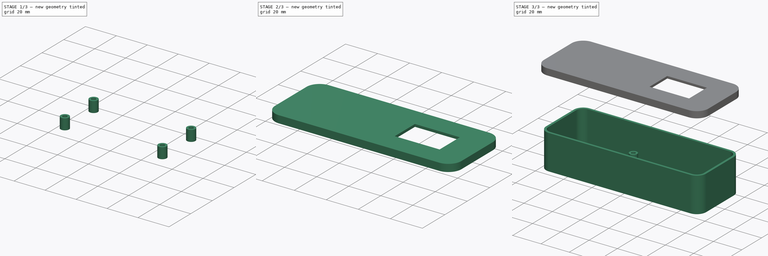
[diagram: build sequence overview — one tinted view per stage of 3, left to right]
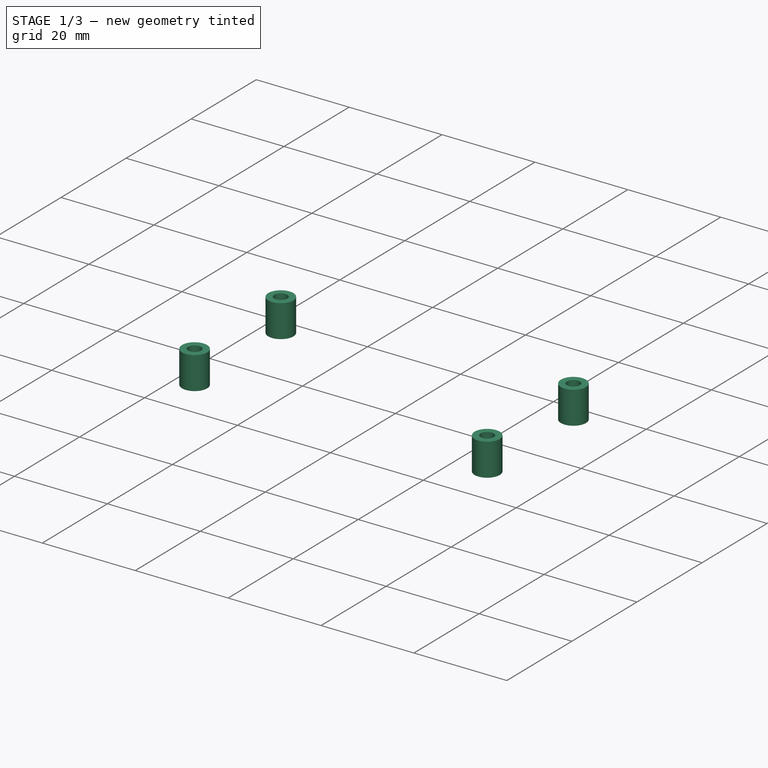
[diagram: stage 1 of 3 — iso view after this stage's code; geometry added in this stage tinted green]
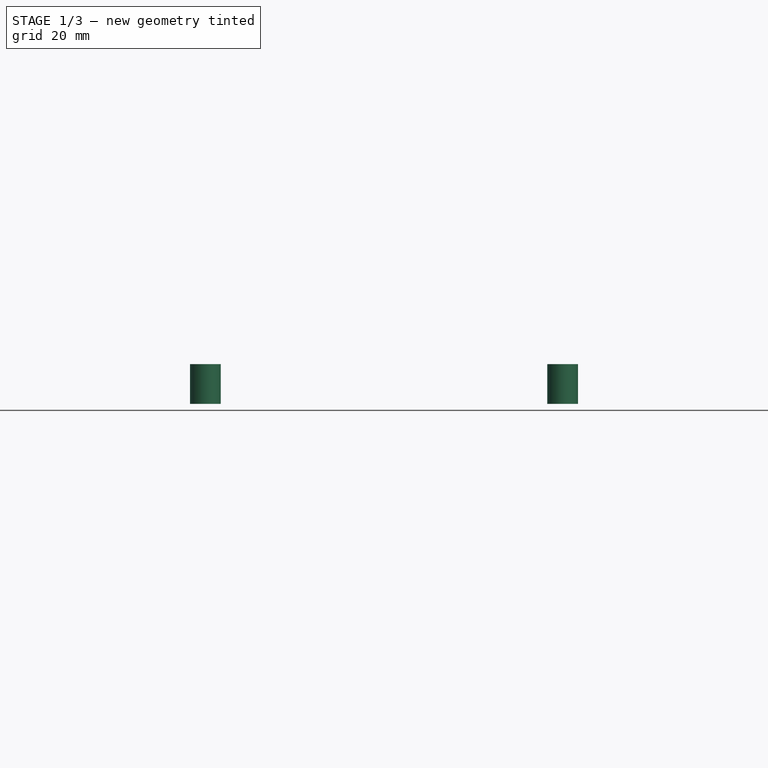
[diagram: stage 1 of 3 — front view after this stage's code; geometry added in this stage tinted green]
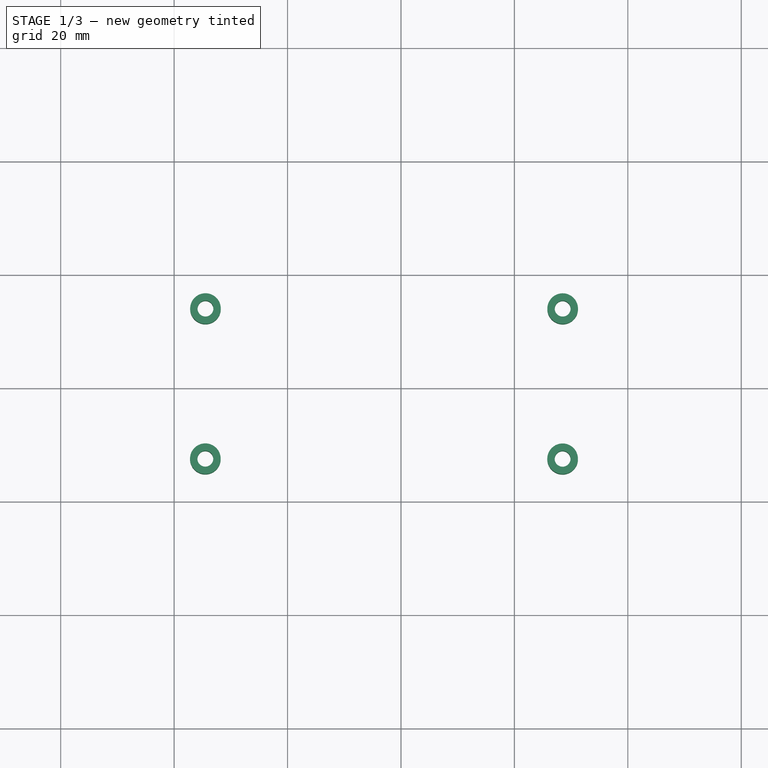
[diagram: stage 1 of 3 — top view after this stage's code; geometry added in this stage tinted green]
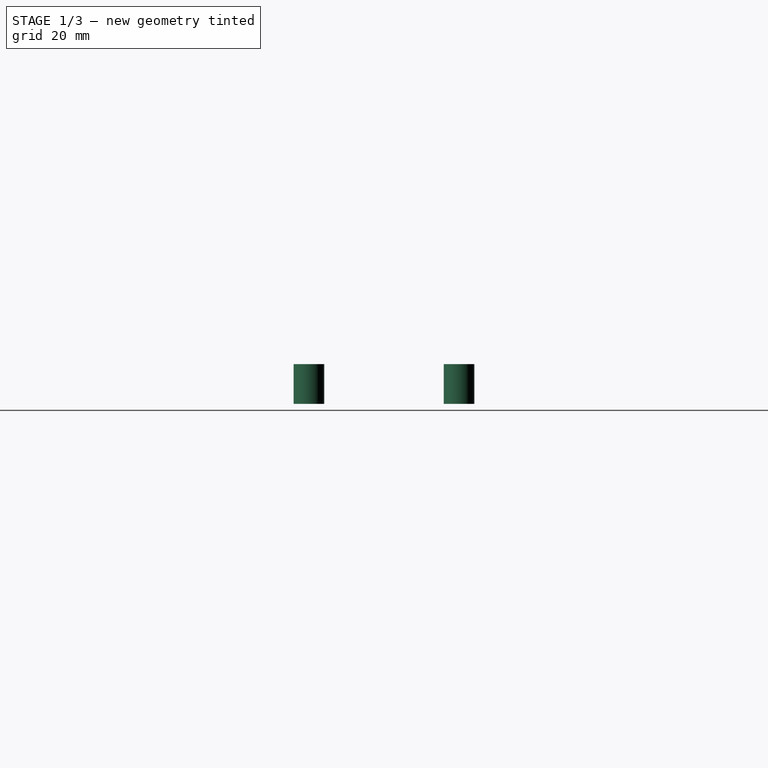
[diagram: stage 1 of 3 — right view after this stage's code; geometry added in this stage tinted green]
FCSTD DOCUMENT  (FreeCAD 0.21R33771 (Git))
Label: MarstekMonitorEnclosureV0.1
License: All rights reserved
LicenseURL: https://en.wikipedia.org/wiki/All_rights_reserved
objects: Sketcher::SketchObject×5, Part::Extrusion×5, Part::Feature×3, Part::MultiFuse×2, App::Part×1, App::DocumentObjectGroup×1
note: 15 computed .brp shape members not serialized (recipe doc carries the construction recipe); baked Part::Feature solids carry a one-line shape summary decoded from their .brp

FEATURE [Part::Feature] Part__Feature  label="C_1210_3225Metric"
  Placement = pos=(113,-92.0625,1.595) rot=(0,0,-1;1.5708rad)
  shape: bbox 2.5 x 3.2 x 2.5 mm, 28 faces (baked)
FEATURE [Part::Feature] Part__Feature001  label="C_1210_3225Metric001"
  Placement = pos=(145.562,-75,1.595) rot=(0,0,1;0rad)
  shape: bbox 3.2 x 2.5 x 2.5 mm, 28 faces (baked)
FEATURE [Part::Feature] Part__Feature002  label="MarstekMonitor_PCB"
  shape: bbox 70 x 33.5 x 1.51 mm, 54 faces (baked)
FEATURE [App::Part] MarstekMonitor_1  label="MarstekMonitor 1"
  Group = -> [Part__Feature,Part__Feature001,Part__Feature002]
  Origin = -> Origin
  Placement = pos=(35,0,0) rot=(0,0,1;0rad)
FEATURE [Sketcher::SketchObject] Sketch  label="walls"
  FullyConstrained = true
  sketch-geometry (20):
    g0: LineSegment StartX=89.4982 StartY=-60.2501 StartZ=0 EndX=189.498 EndY=-60.2501 EndZ=0
    g1: LineSegment StartX=194.498 StartY=-65.2501 StartZ=0 EndX=194.498 EndY=-93.2501 EndZ=0
    g2: LineSegment StartX=189.498 StartY=-98.2501 StartZ=0 EndX=89.4982 EndY=-98.2501 EndZ=0
    g3: LineSegment StartX=84.4982 StartY=-93.2501 StartZ=0 EndX=84.4982 EndY=-65.2501 EndZ=0
    g4: ArcOfCircle CenterX=89.4982 CenterY=-65.2501 CenterZ=0 NormalX=0 NormalY=0 NormalZ=1 AngleXU=0 Radius=5 StartAngle=1.5708 EndAngle=3.14159
    g5: ArcOfCircle CenterX=89.4982 CenterY=-93.2501 CenterZ=0 NormalX=0 NormalY=0 NormalZ=1 AngleXU=0 Radius=5 StartAngle=3.14159 EndAngle=4.71239
    g6: ArcOfCircle CenterX=189.498 CenterY=-93.2501 CenterZ=0 NormalX=0 NormalY=0 NormalZ=1 AngleXU=0 Radius=5 StartAngle=4.71239 EndAngle=6.28319
    g7: ArcOfCircle CenterX=189.498 CenterY=-65.2501 CenterZ=0 NormalX=0 NormalY=0 NormalZ=1 AngleXU=0 Radius=5 StartAngle=-9e-16 EndAngle=1.5708
    g8: LineSegment StartX=86.9982 StartY=-96.0001 StartZ=0 EndX=156.998 EndY=-96.0001 EndZ=0
    g9: LineSegment StartX=156.998 StartY=-96.0001 StartZ=0 EndX=156.998 EndY=-62.5001 EndZ=0
    g10: LineSegment StartX=156.998 StartY=-62.5001 StartZ=0 EndX=86.9982 EndY=-62.5001 EndZ=0
    g11: LineSegment StartX=86.9982 StartY=-62.5001 StartZ=0 EndX=86.9982 EndY=-96.0001 EndZ=0
    g12: LineSegment StartX=89.4982 StartY=-99.8501 StartZ=0 EndX=189.498 EndY=-99.8501 EndZ=0
    g13: LineSegment StartX=196.098 StartY=-93.2501 StartZ=0 EndX=196.098 EndY=-65.2501 EndZ=0
    g14: LineSegment StartX=189.498 StartY=-58.6501 StartZ=0 EndX=89.4982 EndY=-58.6501 EndZ=0
    g15: LineSegment StartX=82.8982 StartY=-65.2501 StartZ=0 EndX=82.8982 EndY=-93.2501 EndZ=0
    g16: ArcOfCircle CenterX=89.4982 CenterY=-93.2501 CenterZ=0 NormalX=0 NormalY=0 NormalZ=1 AngleXU=0 Radius=6.6 StartAngle=3.14159 EndAngle=4.71239
    g17: ArcOfCircle CenterX=189.498 CenterY=-93.2501 CenterZ=0 NormalX=0 NormalY=0 NormalZ=1 AngleXU=0 Radius=6.6 StartAngle=4.71239 EndAngle=6.28319
    g18: ArcOfCircle CenterX=189.498 CenterY=-65.2501 CenterZ=0 NormalX=0 NormalY=0 NormalZ=1 AngleXU=0 Radius=6.6 StartAngle=3e-16 EndAngle=1.5708
    g19: ArcOfCircle CenterX=89.4982 CenterY=-65.2501 CenterZ=0 NormalX=0 NormalY=0 NormalZ=1 AngleXU=0 Radius=6.6 StartAngle=1.5708 EndAngle=3.14159
  constraints (52):
    c: Horizontal(g0)
    c: Horizontal(g2)
    c: Vertical(g1)
    c: Vertical(g3)
    c: Tangent(g0,g4) = 1.5708
    c: Tangent(g3,g4) = 1.5708
    c: Tangent(g2,g5) = 1.5708
    c: Tangent(g3,g5) = 1.5708
    c: Tangent(g1,g6) = 1.5708
    c: Tangent(g2,g6) = 1.5708
    c: Tangent(g0,g7) = 1.5708
    c: Tangent(g1,g7) = 1.5708
    c: Radius(g4) = 5
    c: Radius(g5) = 5
    c: Radius(g6) = 5
    c: Radius(g7) = 5
    c: Distance(g1) = 28
    c: Coincident(g8,g9)
    c: Coincident(g9,g10)
    c: Coincident(g10,g11)
    c: Coincident(g11,g8)
    c: Horizontal(g8)
    c: Horizontal(g10)
    c: Vertical(g9)
    c: Vertical(g11)
    c: DistanceX(g8) = 86.9982
    c: DistanceY(g8) = -96.0001
    c: Distance(g8) = 70
    c: Distance(g9) = 33.5
    c: Distance(g5,g8) = 2.75
    c: Distance(g5,g11) = 2.5
    c: Horizontal(g12)
    c: Horizontal(g14)
    c: Vertical(g13)
    c: Vertical(g15)
    c: Distance(g3,g15) = 1.6
    c: Distance(g2,g12) = 1.6
    c: Tangent(g12,g16) = -1.5708
    c: Tangent(g15,g16) = -1.5708
    c: Radius(g16) = 6.6
    c: Tangent(g12,g17) = -1.5708
    c: Tangent(g13,g17) = -1.5708
    c: Radius(g17) = 6.6
    c: Distance(g1,g13) = 1.6
    c: Distance(g0,g14) = 1.6
    c: Tangent(g13,g18) = -1.5708
    c: Tangent(g14,g18) = -1.5708
    c: Radius(g18) = 6.6
    c: Tangent(g14,g19) = -1.5708
    c: Tangent(g15,g19) = -1.5708
    c: Radius(g19) = 6.6
    c: Distance(g12) = 100
FEATURE [Sketcher::SketchObject] Sketch001  label="bottom"
  FullyConstrained = true
  sketch-geometry (12):
    g0: LineSegment StartX=86.9982 StartY=-96.0001 StartZ=0 EndX=156.998 EndY=-96.0001 EndZ=0
    g1: LineSegment StartX=156.998 StartY=-96.0001 StartZ=0 EndX=156.998 EndY=-62.5001 EndZ=0
    g2: LineSegment StartX=156.998 StartY=-62.5001 StartZ=0 EndX=86.9982 EndY=-62.5001 EndZ=0
    g3: LineSegment StartX=86.9982 StartY=-62.5001 StartZ=0 EndX=86.9982 EndY=-96.0001 EndZ=0
    g4: LineSegment StartX=89.4982 StartY=-99.8501 StartZ=0 EndX=189.498 EndY=-99.8501 EndZ=0
    g5: LineSegment StartX=196.098 StartY=-93.2501 StartZ=0 EndX=196.098 EndY=-65.2501 EndZ=0
    g6: LineSegment StartX=189.498 StartY=-58.6501 StartZ=0 EndX=89.4982 EndY=-58.6501 EndZ=0
    g7: LineSegment StartX=82.8982 StartY=-65.2501 StartZ=0 EndX=82.8982 EndY=-93.2501 EndZ=0
    g8: ArcOfCircle CenterX=89.4982 CenterY=-93.2501 CenterZ=0 NormalX=0 NormalY=0 NormalZ=1 AngleXU=0 Radius=6.6 StartAngle=3.14159 EndAngle=4.71239
    g9: ArcOfCircle CenterX=189.498 CenterY=-93.2501 CenterZ=0 NormalX=0 NormalY=0 NormalZ=1 AngleXU=0 Radius=6.6 StartAngle=4.71239 EndAngle=6.28319
    g10: ArcOfCircle CenterX=189.498 CenterY=-65.2501 CenterZ=0 NormalX=0 NormalY=0 NormalZ=1 AngleXU=0 Radius=6.6 StartAngle=8e-16 EndAngle=1.5708
    g11: ArcOfCircle CenterX=89.4982 CenterY=-65.2501 CenterZ=0 NormalX=0 NormalY=0 NormalZ=1 AngleXU=0 Radius=6.6 StartAngle=1.5708 EndAngle=3.14159
  constraints (33):
    c: Coincident(g0,g1)
    c: Coincident(g1,g2)
    c: Coincident(g2,g3)
    c: Coincident(g3,g0)
    c: Horizontal(g0)
    c: Horizontal(g2)
    c: Vertical(g1)
    c: Vertical(g3)
    c: DistanceX(g0) = 86.9982
    c: DistanceY(g0) = -96.0001
    c: Distance(g0) = 70
    c: Distance(g1) = 33.5
    c: Horizontal(g4)
    c: Horizontal(g6)
    c: Vertical(g5)
    c: Vertical(g7)
    c: Tangent(g4,g8) = -1.5708
    c: Tangent(g4,g9) = -1.5708
    c: Tangent(g5,g9) = -1.5708
    c: Radius(g9) = 6.6
    c: Tangent(g5,g10) = -1.5708
    c: Tangent(g6,g10) = -1.5708
    c: Tangent(g6,g11) = -1.5708
    c: Tangent(g7,g11) = -1.5708
    c: Radius(g11) = 6.6
    c: Radius(g10) = 6.6
    c: Distance(g7) = 28
    c: Distance(g8,g0) = 2.75
    c: Distance(g8,g3) = 2.5
    c: Distance(g11,g2) = 2.75
    c: Distance(g11,g3) = 2.5
    c: Distance(g4) = 100
    c: Coincident(g7,g8)
FEATURE [Part::Extrusion] Extrude  label="Bottom"
  Base = -> Sketch001
  Dir = (0,0,1)
  DirMode = 2
  FaceMakerClass = Part::FaceMakerBullseye
  LengthFwd = 1.6
  LengthRev = 0
  Placement = pos=(0,0,-12) rot=(0,0,1;0rad)
  Solid = true
  Symmetric = false
FEATURE [Sketcher::SketchObject] Sketch002  label="pootjes"
  FullyConstrained = false
  MapMode = 5
  Placement = pos=(0,0,-10.4) rot=(0,0,1;0rad)
  Support = -> [Extrude]
  sketch-geometry (8):
    g0: Circle CenterX=90.5246 CenterY=-65.9938 CenterZ=0 NormalX=0 NormalY=0 NormalZ=1 AngleXU=0 Radius=2.7
    g1: Circle CenterX=90.5246 CenterY=-65.9938 CenterZ=0 NormalX=0 NormalY=0 NormalZ=1 AngleXU=0 Radius=1.4
    g2: Circle CenterX=90.5024 CenterY=-92.4718 CenterZ=0 NormalX=0 NormalY=0 NormalZ=1 AngleXU=0 Radius=2.7
    g3: Circle CenterX=90.5024 CenterY=-92.4718 CenterZ=0 NormalX=0 NormalY=0 NormalZ=1 AngleXU=0 Radius=1.4
    g4: Circle CenterX=153.513 CenterY=-66.0052 CenterZ=0 NormalX=0 NormalY=0 NormalZ=1 AngleXU=0 Radius=2.7
    g5: Circle CenterX=153.513 CenterY=-66.0052 CenterZ=0 NormalX=0 NormalY=0 NormalZ=1 AngleXU=0 Radius=1.4
    g6: Circle CenterX=153.502 CenterY=-92.4878 CenterZ=0 NormalX=0 NormalY=0 NormalZ=1 AngleXU=0 Radius=2.7
    g7: Circle CenterX=153.502 CenterY=-92.4878 CenterZ=0 NormalX=0 NormalY=0 NormalZ=1 AngleXU=0 Radius=1.4
  constraints (12):
    c: Coincident(g1,g0)
    c: Radius(g1) = 1.4
    c: Radius(g0) = 2.7
    c: Coincident(g3,g2)
    c: Equal(g1,g3) = 1.3
    c: Equal(g0,g2) = 2.5
    c: Coincident(g5,g4)
    c: Equal(g1,g5) = 1.3
    c: Equal(g0,g4) = 2.5
    c: Coincident(g7,g6)
    c: Equal(g5,g7) = 1.3
    c: Equal(g4,g6) = 2.5
FEATURE [Part::Extrusion] Extrude001  label="pootjesM3"
  Base = -> Sketch002
  Dir = (0,0,1)
  DirMode = 2
  FaceMakerClass = Part::FaceMakerBullseye
  LengthFwd = 7
  LengthRev = 0
  Placement = pos=(35,0,0) rot=(0,0,1;0rad)
  Solid = true
  Symmetric = false
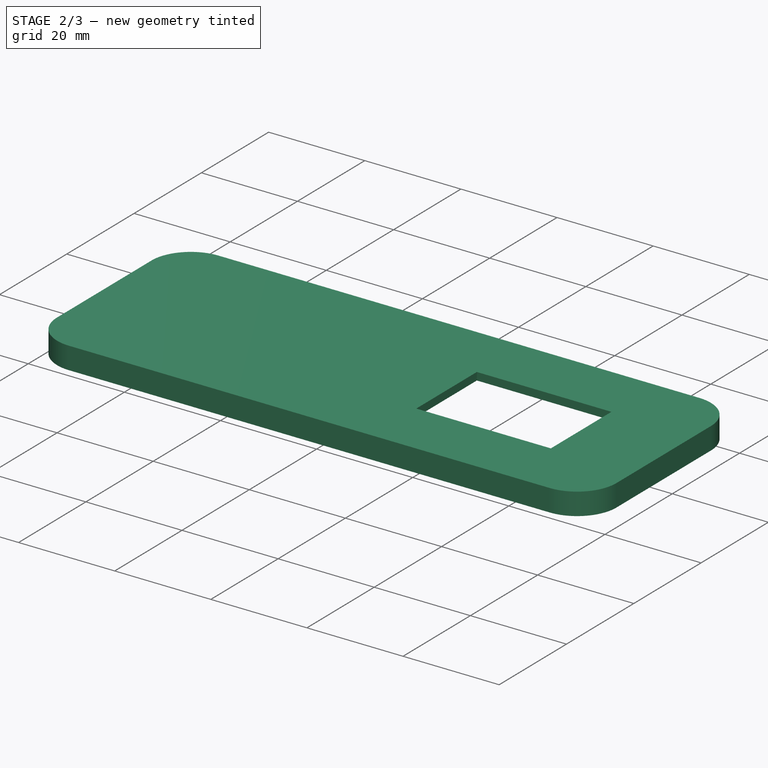
[diagram: stage 2 of 3 — iso view after this stage's code; geometry added in this stage tinted green]
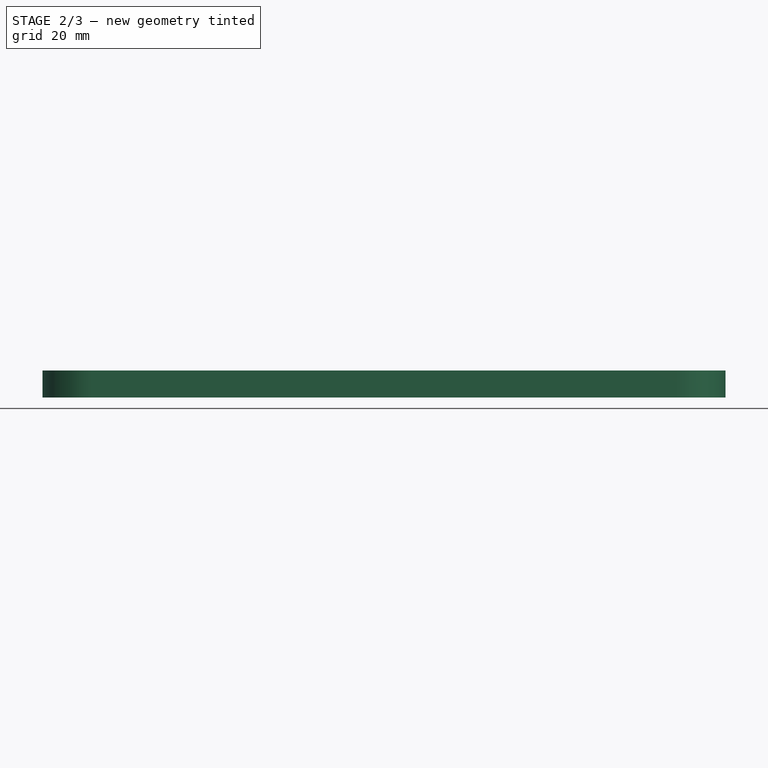
[diagram: stage 2 of 3 — front view after this stage's code; geometry added in this stage tinted green]
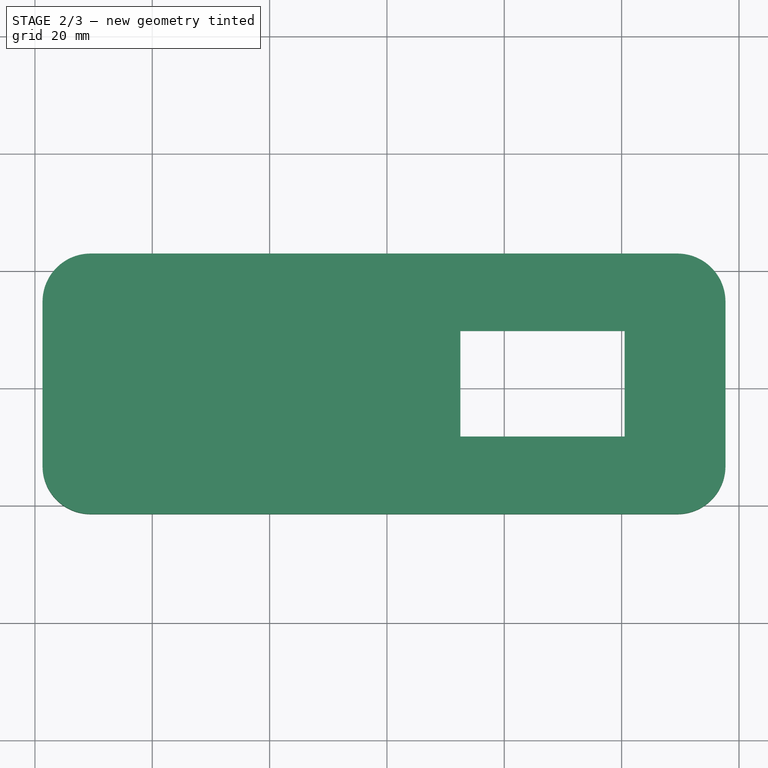
[diagram: stage 2 of 3 — top view after this stage's code; geometry added in this stage tinted green]
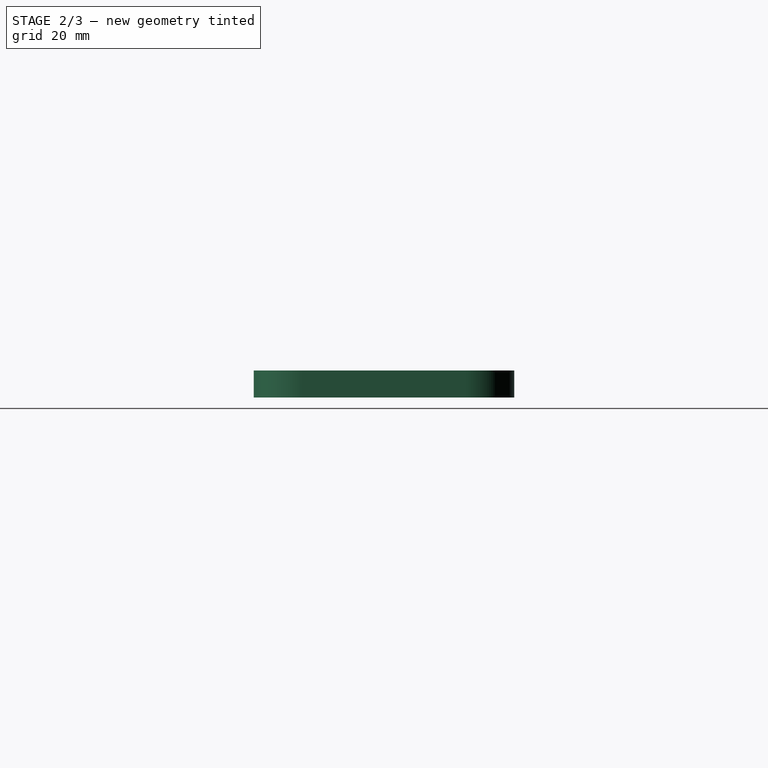
[diagram: stage 2 of 3 — right view after this stage's code; geometry added in this stage tinted green]
FEATURE [Sketcher::SketchObject] Sketch003  label="Deksel001"
  FullyConstrained = true
  expr: Constraints[29] = 6.6 + 1.6
  sketch-geometry (16):
    g0: LineSegment StartX=89.4982 StartY=-99.8501 StartZ=0 EndX=189.498 EndY=-99.8501 EndZ=0
    g1: LineSegment StartX=196.098 StartY=-93.2501 StartZ=0 EndX=196.098 EndY=-65.2501 EndZ=0
    g2: LineSegment StartX=189.498 StartY=-58.6501 StartZ=0 EndX=89.4982 EndY=-58.6501 EndZ=0
    g3: LineSegment StartX=82.8982 StartY=-65.2501 StartZ=0 EndX=82.8982 EndY=-93.2501 EndZ=0
    g4: ArcOfCircle CenterX=89.4982 CenterY=-93.2501 CenterZ=0 NormalX=0 NormalY=0 NormalZ=1 AngleXU=0 Radius=6.6 StartAngle=3.14159 EndAngle=4.71239
    g5: ArcOfCircle CenterX=189.498 CenterY=-93.2501 CenterZ=0 NormalX=0 NormalY=0 NormalZ=1 AngleXU=0 Radius=6.6 StartAngle=4.71239 EndAngle=6.28319
    g6: ArcOfCircle CenterX=189.498 CenterY=-65.2501 CenterZ=0 NormalX=0 NormalY=0 NormalZ=1 AngleXU=0 Radius=6.6 StartAngle=1e-16 EndAngle=1.5708
    g7: ArcOfCircle CenterX=89.4982 CenterY=-65.2501 CenterZ=0 NormalX=0 NormalY=0 NormalZ=1 AngleXU=0 Radius=6.6 StartAngle=1.5708 EndAngle=3.14159
    g8: LineSegment StartX=89.4982 StartY=-57.0501 StartZ=0 EndX=189.498 EndY=-57.0501 EndZ=0
    g9: LineSegment StartX=197.698 StartY=-65.2501 StartZ=0 EndX=197.698 EndY=-93.2501 EndZ=0
    g10: LineSegment StartX=189.498 StartY=-101.45 StartZ=0 EndX=89.4982 EndY=-101.45 EndZ=0
    g11: LineSegment StartX=81.2982 StartY=-93.2501 StartZ=0 EndX=81.2982 EndY=-65.2501 EndZ=0
    g12: ArcOfCircle CenterX=89.4982 CenterY=-65.2501 CenterZ=0 NormalX=0 NormalY=0 NormalZ=1 AngleXU=0 Radius=8.2 StartAngle=1.5708 EndAngle=3.14159
    g13: ArcOfCircle CenterX=89.4982 CenterY=-93.2501 CenterZ=0 NormalX=0 NormalY=0 NormalZ=1 AngleXU=0 Radius=8.2 StartAngle=3.14159 EndAngle=4.71239
    g14: ArcOfCircle CenterX=189.498 CenterY=-65.2501 CenterZ=0 NormalX=0 NormalY=0 NormalZ=1 AngleXU=0 Radius=8.2 StartAngle=7e-16 EndAngle=1.5708
    g15: ArcOfCircle CenterX=189.498 CenterY=-93.2501 CenterZ=0 NormalX=0 NormalY=0 NormalZ=1 AngleXU=0 Radius=8.2 StartAngle=4.71239 EndAngle=6.28319
  constraints (40):
    c: Horizontal(g0)
    c: Horizontal(g2)
    c: Vertical(g1)
    c: Vertical(g3)
    c: Tangent(g0,g4) = -1.5708
    c: Tangent(g3,g4) = -1.5708
    c: Radius(g4) = 6.6
    c: Tangent(g0,g5) = -1.5708
    c: Tangent(g1,g5) = -1.5708
    c: Radius(g5) = 6.6
    c: Tangent(g1,g6) = -1.5708
    c: Tangent(g2,g6) = -1.5708
    c: Radius(g6) = 6.6
    c: Tangent(g2,g7) = -1.5708
    c: Tangent(g3,g7) = -1.5708
    c: Radius(g7) = 6.6
    c: Distance(g0) = 100
    c: Horizontal(g8)
    c: Horizontal(g10)
    c: Vertical(g9)
    c: Vertical(g11)
    c: Distance(g2,g8) = 1.6
    c: Distance(g3,g11) = 1.6
    c: Tangent(g8,g12) = 1.5708
    c: Tangent(g11,g12) = 1.5708
    c: DistanceX(g3) = 82.8982
    c: DistanceY(g3) = -65.2501
    c: Distance(g1,g9) = 1.6
    c: Distance(g0,g10) = 1.6
    c: Radius(g12) = 8.2
    c: Tangent(g10,g13) = 1.5708
    c: Tangent(g11,g13) = 1.5708
    c: Distance(g3) = 28
    c: Radius(g13) = 8.2
    c: Tangent(g8,g14) = 1.5708
    c: Tangent(g9,g14) = 1.5708
    c: Tangent(g9,g15) = 1.5708
    c: Tangent(g10,g15) = 1.5708
    c: Radius(g15) = 8.2
    c: Radius(g14) = 8.2
FEATURE [Part::Extrusion] Extrude003  label="DekselRand"
  Base = -> Sketch003
  Dir = (0,0,1)
  DirMode = 2
  FaceMakerClass = Part::FaceMakerBullseye
  LengthFwd = 3
  LengthRev = 0
  Placement = pos=(0,0,50) rot=(0,0,1;0rad)
  Solid = true
  Symmetric = false
FEATURE [Sketcher::SketchObject] Sketch004  label="Deksel004"
  ExternalGeometry = -> [Extrude001]
  FullyConstrained = false
  expr: Constraints[6] = 6.6 + 1.6
  sketch-geometry (12):
    g0: LineSegment StartX=89.4982 StartY=-57.0501 StartZ=0 EndX=189.498 EndY=-57.0501 EndZ=0
    g1: LineSegment StartX=197.698 StartY=-65.2501 StartZ=0 EndX=197.698 EndY=-93.2501 EndZ=0
    g2: LineSegment StartX=189.498 StartY=-101.45 StartZ=0 EndX=89.4982 EndY=-101.45 EndZ=0
    g3: LineSegment StartX=81.2982 StartY=-93.2501 StartZ=0 EndX=81.2982 EndY=-65.2501 EndZ=0
    g4: ArcOfCircle CenterX=89.4982 CenterY=-65.2501 CenterZ=0 NormalX=0 NormalY=0 NormalZ=1 AngleXU=0 Radius=8.2 StartAngle=1.5708 EndAngle=3.14159
    g5: ArcOfCircle CenterX=89.4982 CenterY=-93.2501 CenterZ=0 NormalX=0 NormalY=0 NormalZ=1 AngleXU=0 Radius=8.2 StartAngle=3.14159 EndAngle=4.71239
    g6: ArcOfCircle CenterX=189.498 CenterY=-65.2501 CenterZ=0 NormalX=0 NormalY=0 NormalZ=1 AngleXU=0 Radius=8.2 StartAngle=7e-16 EndAngle=1.5708
    g7: ArcOfCircle CenterX=189.498 CenterY=-93.2501 CenterZ=0 NormalX=0 NormalY=0 NormalZ=1 AngleXU=0 Radius=8.2 StartAngle=4.71239 EndAngle=6.28319
    g8: LineSegment StartX=180.513 StartY=-70.2451 StartZ=0 EndX=152.513 EndY=-70.2451 EndZ=0
    g9: LineSegment StartX=152.513 StartY=-70.2451 StartZ=0 EndX=152.513 EndY=-88.2451 EndZ=0
    g10: LineSegment StartX=152.513 StartY=-88.2451 StartZ=0 EndX=180.513 EndY=-88.2451 EndZ=0
    g11: LineSegment StartX=180.513 StartY=-88.2451 StartZ=0 EndX=180.513 EndY=-70.2451 EndZ=0
  constraints (28):
    c: Horizontal(g0)
    c: Horizontal(g2)
    c: Vertical(g1)
    c: Vertical(g3)
    c: Tangent(g0,g4) = 1.5708
    c: Tangent(g3,g4) = 1.5708
    c: Radius(g4) = 8.2
    c: Tangent(g2,g5) = 1.5708
    c: Tangent(g3,g5) = 1.5708
    c: Radius(g5) = 8.2
    c: Tangent(g0,g6) = 1.5708
    c: Tangent(g1,g6) = 1.5708
    c: Tangent(g1,g7) = 1.5708
    c: Tangent(g2,g7) = 1.5708
    c: Radius(g7) = 8.2
    c: Radius(g6) = 8.2
    c: Coincident(g8,g9)
    c: Coincident(g9,g10)
    c: Coincident(g10,g11)
    c: Coincident(g11,g8)
    c: Horizontal(g8)
    c: Horizontal(g10)
    c: Vertical(g9)
    c: Vertical(g11)
    c: Distance(g11) = 18
    c: Distance(g8) = 28
    c: Distance(g-3,g11) = 8
    c: Distance(g-3,g8) = 4.24
FEATURE [Part::Extrusion] Extrude004  label="DekselTop"
  Base = -> Sketch004
  Dir = (0,0,1)
  DirMode = 2
  FaceMakerClass = Part::FaceMakerBullseye
  LengthFwd = 1.6
  LengthRev = 0
  Placement = pos=(0,0,53) rot=(0,0,1;0rad)
  Solid = true
  Symmetric = false
FEATURE [Part::MultiFuse] Fusion001  label="Deksel"
  Shapes = -> [Extrude003,Extrude004]
FEATURE [App::DocumentObjectGroup] Group  label="Deksel003"
  Group = -> [Sketch004,Fusion001]
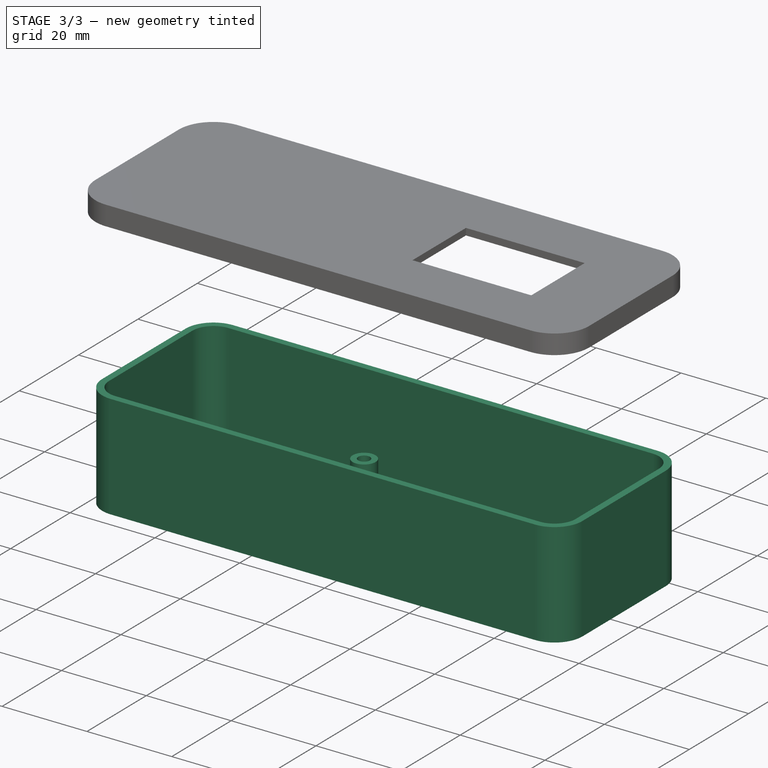
[diagram: stage 3 of 3 — iso view after this stage's code; geometry added in this stage tinted green]
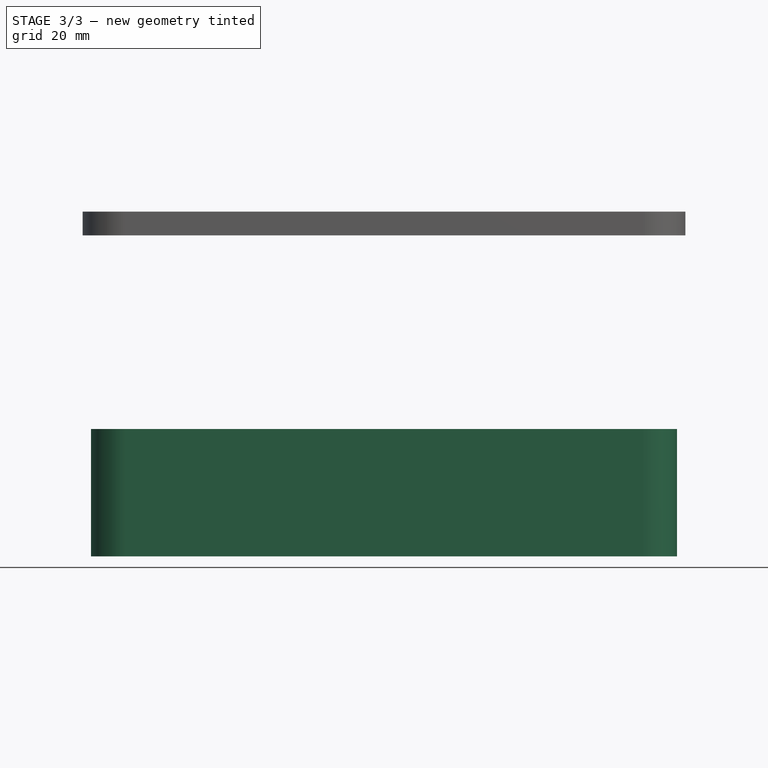
[diagram: stage 3 of 3 — front view after this stage's code; geometry added in this stage tinted green]
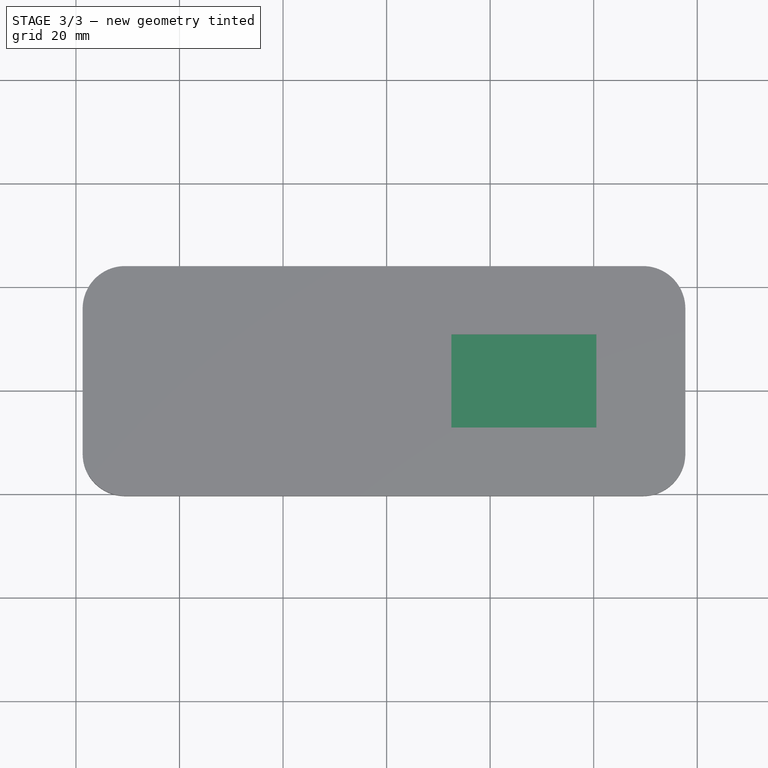
[diagram: stage 3 of 3 — top view after this stage's code; geometry added in this stage tinted green]
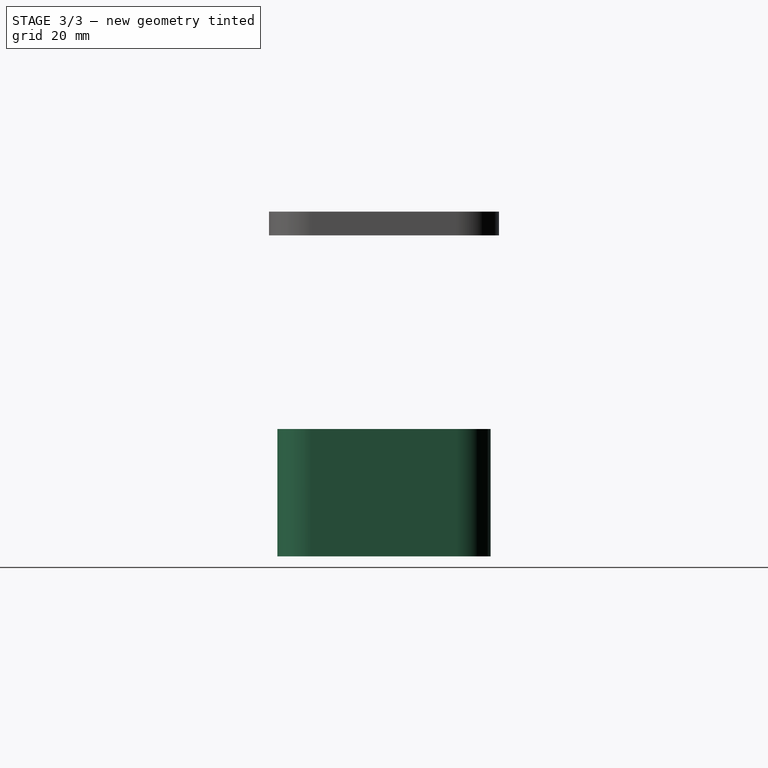
[diagram: stage 3 of 3 — right view after this stage's code; geometry added in this stage tinted green]
FEATURE [Part::Extrusion] Extrude002  label="Walls"
  Base = -> Sketch
  Dir = (0,0,1)
  DirMode = 2
  FaceMakerClass = Part::FaceMakerBullseye
  LengthFwd = 23
  LengthRev = 0
  Placement = pos=(0,0,-10.4) rot=(0,0,1;0rad)
  Solid = true
  Symmetric = false
FEATURE [Part::MultiFuse] Fusion  label="Doos"
  Shapes = -> [Extrude,Extrude001,Extrude002]
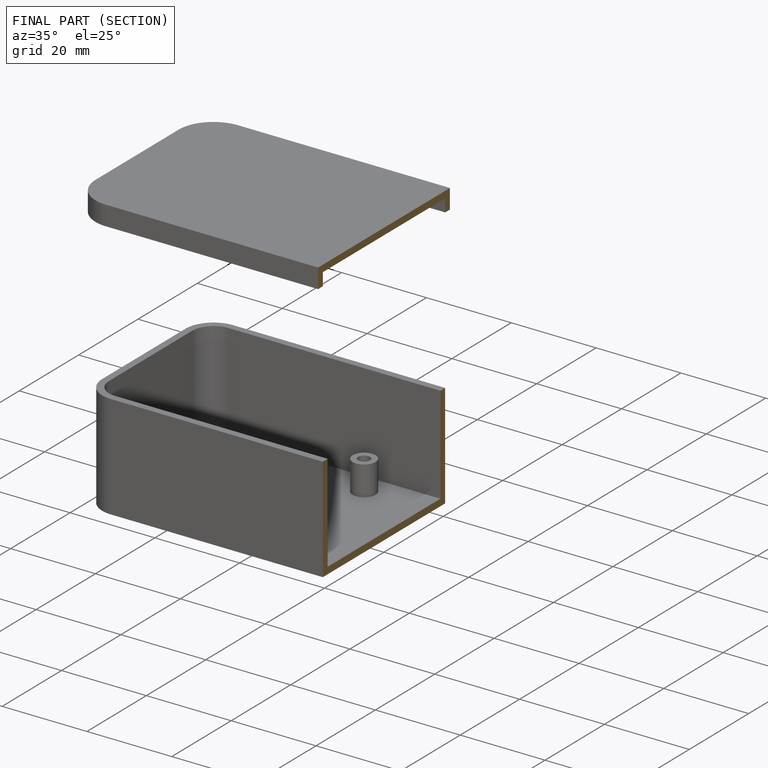
[diagram: finished part — half-section view (interior)]
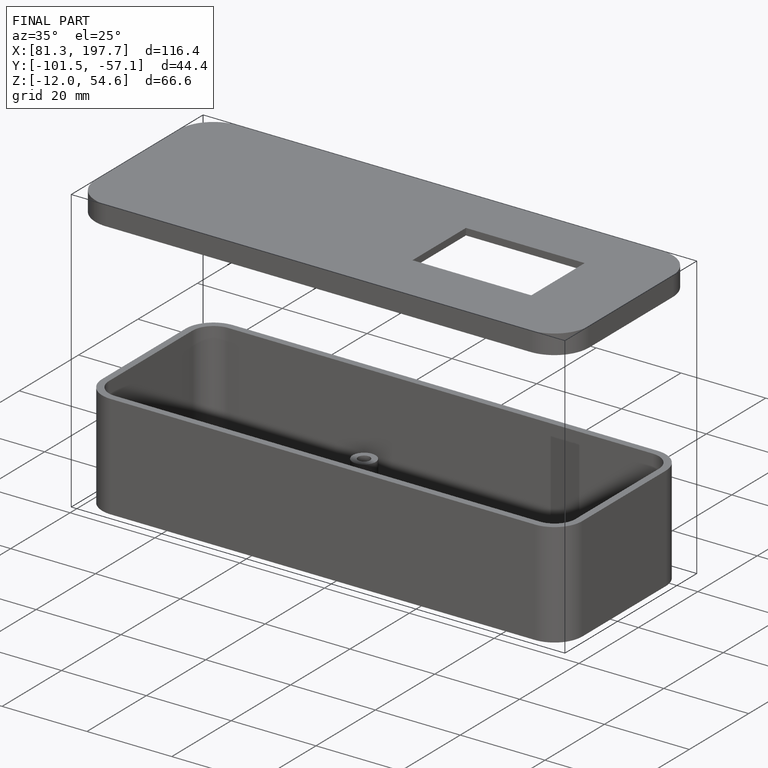
[diagram: finished part — iso view with bounding-box wireframe]
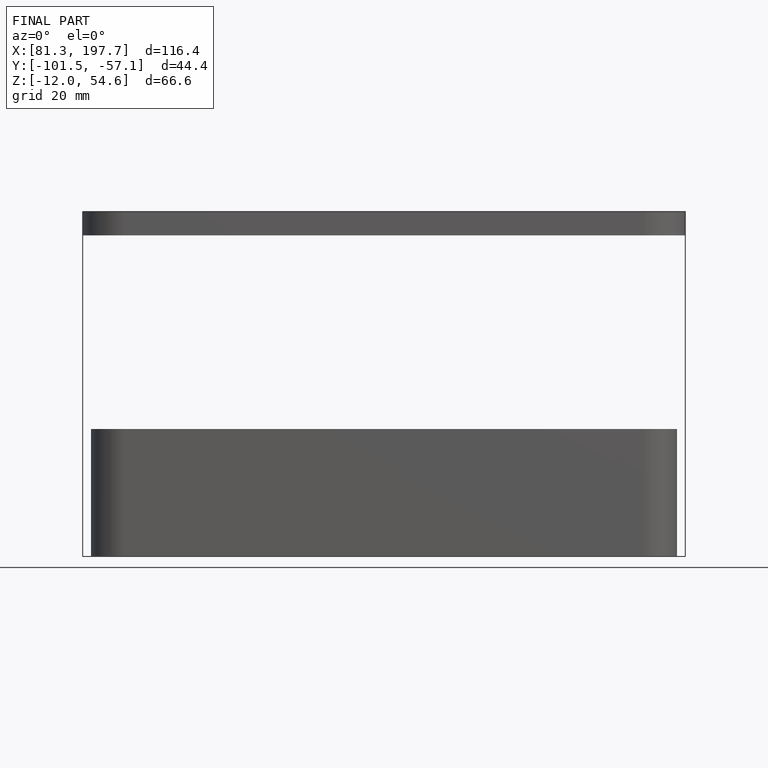
[diagram: finished part — front view with bounding-box wireframe]
